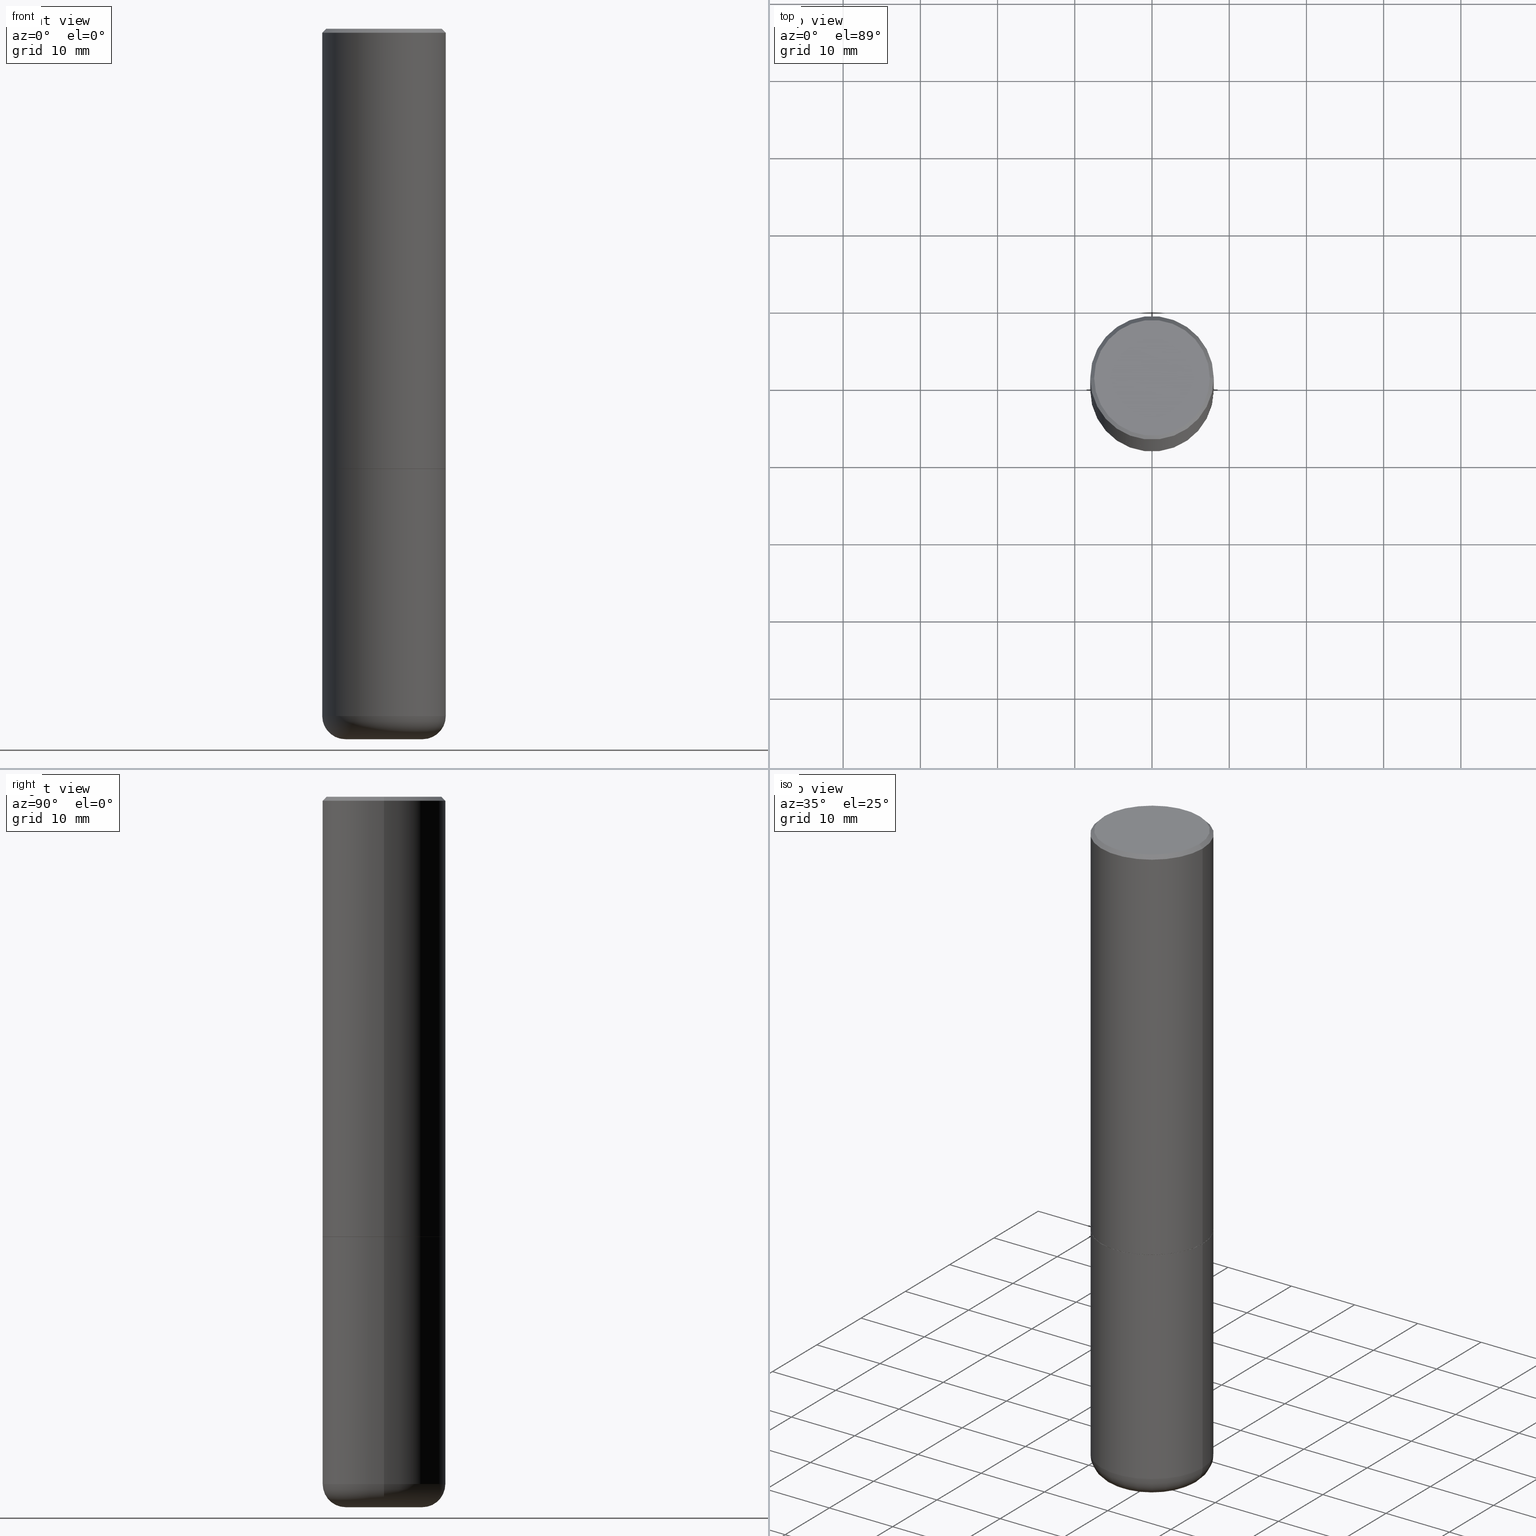
[diagram: canonical four-view strip — front | top / right | iso, engineering-drawing reading convention]
A machine part, canonical four-view strip (front | top / right | iso — engineering-drawing reading convention). The complete STEP part file that produces these views, byte-faithful:
ISO-10303-21;
HEADER;
FILE_DESCRIPTION (( 'STEP AP203' ),
    '1' );
FILE_NAME ('47051.STEP',
    '2024-03-05T15:22:00',
    ( '' ),
    ( '' ),
    'SwSTEP 2.0',
    'SolidWorks 2023',
    '' );
FILE_SCHEMA (( 'CONFIG_CONTROL_DESIGN' ));
ENDSEC;

DATA;
#1 = ADVANCED_BREP_SHAPE_REPRESENTATION ( '47051', ( #372, #90, #180 ), #160 ) ;
#2 = ORIENTED_EDGE ( 'NONE', *, *, #311, .F. ) ;
#3 = AXIS2_PLACEMENT_3D ( 'NONE', #31, #412, #193 ) ;
#4 = DIRECTION ( 'NONE',  ( 2.445468806185136597E-29, -3.491481338843145583E-15, -1.000000000000000000 ) ) ;
#5 = CARTESIAN_POINT ( 'NONE',  ( 0.3139500000000000068, -1.002718525702362111E-14, -2.243999999999999773 ) ) ;
#6 = DIRECTION ( 'NONE',  ( 1.000000000000000000, -6.982962677686264344E-15, 0.000000000000000000 ) ) ;
#7 = PERSON_AND_ORGANIZATION_ROLE ( 'creator' ) ;
#8 = CC_DESIGN_APPROVAL ( #118, ( #408 ) ) ;
#9 = FACE_OUTER_BOUND ( 'NONE', #255, .T. ) ;
#10 = PERSON_AND_ORGANIZATION ( #211, #69 ) ;
#11 = ORIENTED_EDGE ( 'NONE', *, *, #152, .F. ) ;
#12 = EDGE_CURVE ( 'NONE', #378, #353, #68, .T. ) ;
#13 = CLOSED_SHELL ( 'NONE', ( #136, #284, #367, #264, #317, #170, #238, #65 ) ) ;
#14 = CIRCLE ( 'NONE', #184, 0.3139500000000000068 ) ;
#15 = LINE ( 'NONE', #157, #392 ) ;
#16 = ORIENTED_EDGE ( 'NONE', *, *, #403, .F. ) ;
#17 = PERSON_AND_ORGANIZATION ( #211, #69 ) ;
#18 = EDGE_CURVE ( 'NONE', #93, #227, #362, .T. ) ;
#19 = CARTESIAN_POINT ( 'NONE',  ( 8.857488016002563354E-29, -1.264614540928987041E-14, -3.621999999999999442 ) ) ;
#20 = EDGE_LOOP ( 'NONE', ( #72, #285, #340, #257 ) ) ;
#21 = ORIENTED_EDGE ( 'NONE', *, *, #387, .T. ) ;
#22 = ADVANCED_FACE ( 'NONE', ( #214 ), #352, .T. ) ;
#23 = APPROVAL_DATE_TIME ( #348, #131 ) ;
#24 = AXIS2_PLACEMENT_3D ( 'NONE', #134, #202, #144 ) ;
#25 = CALENDAR_DATE ( 2024, 5, 3 ) ;
#26 = DESIGN_CONTEXT ( 'detailed design', #313, 'design' ) ;
#27 = DIRECTION ( 'NONE',  ( -2.445468806185136597E-29, 3.491481338843145583E-15, 1.000000000000000000 ) ) ;
#28 = CARTESIAN_POINT ( 'NONE',  ( 4.890937612370289799E-31, -6.982962677686315028E-17, -0.02000000000000006981 ) ) ;
#29 = ORIENTED_EDGE ( 'NONE', *, *, #106, .T. ) ;
#30 = DIRECTION ( 'NONE',  ( 2.438088387897960049E-29, -3.491481338843145188E-15, -1.000000000000000000 ) ) ;
#31 = CARTESIAN_POINT ( 'NONE',  ( 0.1968500000000000250, -1.360839766627503947E-14, -3.503899999999999793 ) ) ;
#32 = VERTEX_POINT ( 'NONE', #377 ) ;
#33 = CARTESIAN_POINT ( 'NONE',  ( 0.000000000000000000, 0.000000000000000000, 0.000000000000000000 ) ) ;
#34 = CARTESIAN_POINT ( 'NONE',  ( 0.3149500000000000077, -2.230543471175007450E-15, -0.02000000000000006981 ) ) ;
#35 = DIRECTION ( 'NONE',  ( 1.000000000000000000, -6.982962677686263555E-15, 0.000000000000000000 ) ) ;
#36 = AXIS2_PLACEMENT_3D ( 'NONE', #19, #60, #121 ) ;
#37 = DIRECTION ( 'NONE',  ( -0.7071067811866199593, 7.493145998870616062E-15, 0.7071067811864750752 ) ) ;
#38 = DIRECTION ( 'NONE',  ( -2.445468806185136597E-29, 3.491481338843145583E-15, 1.000000000000000000 ) ) ;
#39 = CARTESIAN_POINT ( 'NONE',  ( -0.3139500000000000068, -5.604135205445183851E-15, -2.243999999999999773 ) ) ;
#40 = DIRECTION ( 'NONE',  ( -2.445468806185136597E-29, 3.491481338843145583E-15, 1.000000000000000000 ) ) ;
#41 = VERTEX_POINT ( 'NONE', #410 ) ;
#42 = LOCAL_TIME ( 10, 22, 0.000000000000000000, #49 ) ;
#43 = CC_DESIGN_SECURITY_CLASSIFICATION ( #415, ( #59 ) ) ;
#44 = DIRECTION ( 'NONE',  ( -2.445468806185136877E-29, 3.491481338843145188E-15, 1.000000000000000000 ) ) ;
#45 = DIRECTION ( 'NONE',  ( -2.445468806185136597E-29, 3.491481338843145583E-15, 1.000000000000000000 ) ) ;
#46 = EDGE_LOOP ( 'NONE', ( #251, #192, #100, #382 ) ) ;
#47 = EDGE_CURVE ( 'NONE', #32, #414, #231, .T. ) ;
#48 = CARTESIAN_POINT ( 'NONE',  ( -0.1968500000000000250, -1.062169457542108764E-14, -3.621999999999999442 ) ) ;
#49 = COORDINATED_UNIVERSAL_TIME_OFFSET ( 5, 0, .BEHIND. ) ;
#50 = FACE_OUTER_BOUND ( 'NONE', #46, .T. ) ;
#51 = DIRECTION ( 'NONE',  ( -0.7071067811865466846, 2.468850131082247989E-15, -0.7071067811865483499 ) ) ;
#52 = SECURITY_CLASSIFICATION_LEVEL ( 'unclassified' ) ;
#53 = CALENDAR_DATE ( 2024, 5, 3 ) ;
#54 = CARTESIAN_POINT ( 'NONE',  ( 4.890937612370289799E-31, -6.982962677686315028E-17, -0.02000000000000006981 ) ) ;
#55 = VERTEX_POINT ( 'NONE', #218 ) ;
#56 = DIRECTION ( 'NONE',  ( -2.445468806185136597E-29, 3.491481338843145583E-15, 1.000000000000000000 ) ) ;
#57 = CC_DESIGN_PERSON_AND_ORGANIZATION_ASSIGNMENT ( #114, #146, ( #415 ) ) ;
#58 = AXIS2_PLACEMENT_3D ( 'NONE', #310, #40, #123 ) ;
#59 = PRODUCT_DEFINITION_FORMATION_WITH_SPECIFIED_SOURCE ( 'ANY', '', #365, .NOT_KNOWN. ) ;
#60 = DIRECTION ( 'NONE',  ( -2.445468806185136597E-29, 3.491481338843145583E-15, 1.000000000000000000 ) ) ;
#61 = APPROVAL_PERSON_ORGANIZATION ( #332, #103, #305 ) ;
#62 = CARTESIAN_POINT ( 'NONE',  ( 5.485186532273261485E-29, -7.831392643025175821E-15, -2.242999999999999883 ) ) ;
#63 = EDGE_LOOP ( 'NONE', ( #79, #102, #96, #400 ) ) ;
#64 = PLANE ( 'NONE',  #282 ) ;
#65 = ADVANCED_FACE ( 'NONE', ( #132 ), #314, .F. ) ;
#66 = DIRECTION ( 'NONE',  ( -2.445468806185136877E-29, 3.491481338843145188E-15, 1.000000000000000000 ) ) ;
#67 = DIRECTION ( 'NONE',  ( -2.445468806185136597E-29, 3.491481338843145583E-15, 1.000000000000000000 ) ) ;
#68 = CIRCLE ( 'NONE', #141, 0.3149500000000000077 ) ;
#69 = ORGANIZATION ( 'UNSPECIFIED', 'UNSPECIFIED', '' ) ;
#70 = EDGE_LOOP ( 'NONE', ( #164, #281, #165, #91 ) ) ;
#71 = DIRECTION ( 'NONE',  ( -2.445468806185136597E-29, 3.491481338843145583E-15, 1.000000000000000000 ) ) ;
#72 = ORIENTED_EDGE ( 'NONE', *, *, #207, .F. ) ;
#73 = APPLICATION_PROTOCOL_DEFINITION ( 'international standard', 'config_control_design', 1994, #182 ) ;
#74 = DIRECTION ( 'NONE',  ( 1.000000000000000000, -6.982962677686266711E-15, 0.000000000000000000 ) ) ;
#75 = AXIS2_PLACEMENT_3D ( 'NONE', #62, #27, #384 ) ;
#76 = CONICAL_SURFACE ( 'NONE', #393, 0.3149500000000000077, 0.7853981633974471688 ) ;
#77 = CARTESIAN_POINT ( 'NONE',  ( 0.000000000000000000, 0.000000000000000000, 0.000000000000000000 ) ) ;
#78 = PERSON_AND_ORGANIZATION_ROLE ( 'design_supplier' ) ;
#79 = ORIENTED_EDGE ( 'NONE', *, *, #172, .F. ) ;
#80 = DIRECTION ( 'NONE',  ( -2.445468806185136597E-29, 3.491481338843145583E-15, 1.000000000000000000 ) ) ;
#81 = DATE_AND_TIME ( #85, #42 ) ;
#82 = DIRECTION ( 'NONE',  ( -2.445468806185136597E-29, 3.491481338843145583E-15, 1.000000000000000000 ) ) ;
#83 = EDGE_CURVE ( 'NONE', #353, #378, #369, .T. ) ;
#84 = CC_DESIGN_DATE_AND_TIME_ASSIGNMENT ( #265, #268, ( #415 ) ) ;
#85 = CALENDAR_DATE ( 2024, 5, 3 ) ;
#86 = CIRCLE ( 'NONE', #159, 0.3149500000000000077 ) ;
#87 = VECTOR ( 'NONE', #44, 39.37007874015748143 ) ;
#88 = CC_DESIGN_PERSON_AND_ORGANIZATION_ASSIGNMENT ( #262, #78, ( #59 ) ) ;
#89 = ORIENTED_EDGE ( 'NONE', *, *, #113, .F. ) ;
#90 = MANIFOLD_SOLID_BREP ( 'Body-Move/Copy2[2]', #13 ) ;
#91 = ORIENTED_EDGE ( 'NONE', *, *, #47, .F. ) ;
#92 = CARTESIAN_POINT ( 'NONE',  ( 5.487632001079445967E-29, -7.834884124364017250E-15, -2.243999999999999773 ) ) ;
#93 = VERTEX_POINT ( 'NONE', #380 ) ;
#94 = FACE_OUTER_BOUND ( 'NONE', #418, .T. ) ;
#95 = LOCAL_TIME ( 10, 22, 0.000000000000000000, #335 ) ;
#96 = ORIENTED_EDGE ( 'NONE', *, *, #213, .T. ) ;
#97 = DIRECTION ( 'NONE',  ( -2.445468806185136877E-29, 3.491481338843145188E-15, 1.000000000000000000 ) ) ;
#98 = CARTESIAN_POINT ( 'NONE',  ( 0.000000000000000000, 0.000000000000000000, 0.000000000000000000 ) ) ;
#99 = CARTESIAN_POINT ( 'NONE',  ( -0.3139500000000000068, -5.598836751096959871E-15, -2.243999999999999773 ) ) ;
#100 = ORIENTED_EDGE ( 'NONE', *, *, #47, .T. ) ;
#101 = AXIS2_PLACEMENT_3D ( 'NONE', #77, #411, #327 ) ;
#102 = ORIENTED_EDGE ( 'NONE', *, *, #243, .F. ) ;
#103 = APPROVAL ( #296, 'UNSPECIFIED' ) ;
#104 = CARTESIAN_POINT ( 'NONE',  ( -0.3149500000000000077, -7.796488447491823147E-15, -2.243999999999999773 ) ) ;
#105 =( CONVERSION_BASED_UNIT ( 'INCH', #299 ) LENGTH_UNIT ( ) NAMED_UNIT ( #221 ) );
#106 = EDGE_CURVE ( 'NONE', #414, #55, #242, .T. ) ;
#107 = VECTOR ( 'NONE', #66, 39.37007874015748143 ) ;
#108 = CC_DESIGN_APPROVAL ( #103, ( #59 ) ) ;
#109 = COORDINATED_UNIVERSAL_TIME_OFFSET ( 5, 0, .BEHIND. ) ;
#110 = UNCERTAINTY_MEASURE_WITH_UNIT (LENGTH_MEASURE( 1.000000000000000082E-05 ), #105, 'distance_accuracy_value', 'NONE');
#111 = DIRECTION ( 'NONE',  ( -2.445468806185136597E-29, 3.491481338843145583E-15, 1.000000000000000000 ) ) ;
#112 = CALENDAR_DATE ( 2024, 5, 3 ) ;
#113 = EDGE_CURVE ( 'NONE', #374, #93, #249, .T. ) ;
#114 = PERSON_AND_ORGANIZATION ( #211, #69 ) ;
#115 = CIRCLE ( 'NONE', #147, 0.1180999999999997191 ) ;
#116 = CARTESIAN_POINT ( 'NONE',  ( 5.487632001079445967E-29, -7.834884124364017250E-15, -2.243999999999999773 ) ) ;
#117 = DIRECTION ( 'NONE',  ( 1.000000000000000000, -6.982962677686266711E-15, 0.000000000000000000 ) ) ;
#118 = APPROVAL ( #337, 'UNSPECIFIED' ) ;
#119 = EDGE_LOOP ( 'NONE', ( #224, #371, #167, #416 ) ) ;
#120 = TOROIDAL_SURFACE ( 'NONE', #351, 0.1968500000000000250, 0.1180999999999997468 ) ;
#121 = DIRECTION ( 'NONE',  ( 1.000000000000000000, -6.982962677686267499E-15, 0.000000000000000000 ) ) ;
#122 = COORDINATED_UNIVERSAL_TIME_OFFSET ( 5, 0, .BEHIND. ) ;
#123 = DIRECTION ( 'NONE',  ( 1.000000000000000000, -6.982962677686266711E-15, 0.000000000000000000 ) ) ;
#124 = CYLINDRICAL_SURFACE ( 'NONE', #316, 0.3149500000000001743 ) ;
#125 = EDGE_CURVE ( 'NONE', #55, #353, #220, .T. ) ;
#126 = ORIENTED_EDGE ( 'NONE', *, *, #376, .T. ) ;
#127 = DIRECTION ( 'NONE',  ( -2.445468806185136597E-29, 3.491481338843145583E-15, 1.000000000000000000 ) ) ;
#128 = EDGE_CURVE ( 'NONE', #55, #414, #86, .T. ) ;
#129 = EDGE_LOOP ( 'NONE', ( #247, #21, #241, #407 ) ) ;
#130 = DIRECTION ( 'NONE',  ( -1.000000000000000000, 6.982962677686266711E-15, 0.000000000000000000 ) ) ;
#131 = APPROVAL ( #361, 'UNSPECIFIED' ) ;
#132 = FACE_OUTER_BOUND ( 'NONE', #185, .T. ) ;
#133 = CIRCLE ( 'NONE', #216, 0.3149500000000002853 ) ;
#134 = CARTESIAN_POINT ( 'NONE',  ( 8.857488016002563354E-29, -1.264614540928987041E-14, -3.621999999999999442 ) ) ;
#135 = DIRECTION ( 'NONE',  ( 1.000000000000000000, -6.982962677686269866E-15, 4.883557194083114022E-29 ) ) ;
#136 = ADVANCED_FACE ( 'NONE', ( #350 ), #307, .T. ) ;
#137 = CYLINDRICAL_SURFACE ( 'NONE', #101, 0.3149500000000000077 ) ;
#138 = DIRECTION ( 'NONE',  ( -2.445468806185136597E-29, 3.491481338843145583E-15, 1.000000000000000000 ) ) ;
#139 = CARTESIAN_POINT ( 'NONE',  ( 0.3149499999999998967, -1.443308555850978615E-14, -3.503899999999999793 ) ) ;
#140 = FACE_OUTER_BOUND ( 'NONE', #63, .T. ) ;
#141 = AXIS2_PLACEMENT_3D ( 'NONE', #189, #280, #187 ) ;
#142 = AXIS2_PLACEMENT_3D ( 'NONE', #208, #56, #354 ) ;
#143 = COORDINATED_UNIVERSAL_TIME_OFFSET ( 5, 0, .BEHIND. ) ;
#144 = DIRECTION ( 'NONE',  ( 1.000000000000000000, -6.982962677686267499E-15, 0.000000000000000000 ) ) ;
#145 = PLANE ( 'NONE',  #225 ) ;
#146 = PERSON_AND_ORGANIZATION_ROLE ( 'classification_officer' ) ;
#147 = AXIS2_PLACEMENT_3D ( 'NONE', #272, #203, #205 ) ;
#148 = ORIENTED_EDGE ( 'NONE', *, *, #152, .T. ) ;
#149 = FACE_OUTER_BOUND ( 'NONE', #319, .T. ) ;
#150 = AXIS2_PLACEMENT_3D ( 'NONE', #318, #38, #297 ) ;
#151 = AXIS2_PLACEMENT_3D ( 'NONE', #248, #375, #379 ) ;
#152 = EDGE_CURVE ( 'NONE', #374, #347, #309, .T. ) ;
#153 = ORIENTED_EDGE ( 'NONE', *, *, #128, .T. ) ;
#154 = DIRECTION ( 'NONE',  ( 2.445468806185136597E-29, -3.491481338843145583E-15, -1.000000000000000000 ) ) ;
#155 = PRODUCT_RELATED_PRODUCT_CATEGORY ( 'detail', '', ( #365 ) ) ;
#156 = DIRECTION ( 'NONE',  ( -1.000000000000000000, 6.982962677686265922E-15, -4.876176775795935793E-29 ) ) ;
#157 = CARTESIAN_POINT ( 'NONE',  ( 0.3149500000000000077, -2.230543471175007450E-15, -0.02000000000000006981 ) ) ;
#158 = DIRECTION ( 'NONE',  ( 0.7071067811866199593, -2.468850131083015945E-15, 0.7071067811864750752 ) ) ;
#159 = AXIS2_PLACEMENT_3D ( 'NONE', #161, #127, #260 ) ;
#160 =( GEOMETRIC_REPRESENTATION_CONTEXT ( 3 ) GLOBAL_UNCERTAINTY_ASSIGNED_CONTEXT ( ( #110 ) ) GLOBAL_UNIT_ASSIGNED_CONTEXT ( ( #105, #388, #359 ) ) REPRESENTATION_CONTEXT ( 'NONE', 'WORKASPACE' ) );
#161 = CARTESIAN_POINT ( 'NONE',  ( 8.568678149992099474E-29, -1.223380146317249786E-14, -3.503899999999999793 ) ) ;
#162 = EDGE_LOOP ( 'NONE', ( #209, #274, #338, #204 ) ) ;
#163 = CC_DESIGN_DATE_AND_TIME_ASSIGNMENT ( #181, #395, ( #408 ) ) ;
#164 = ORIENTED_EDGE ( 'NONE', *, *, #403, .T. ) ;
#165 = ORIENTED_EDGE ( 'NONE', *, *, #106, .F. ) ;
#166 = CARTESIAN_POINT ( 'NONE',  ( 8.568678149992099474E-29, -1.223380146317249786E-14, -3.503899999999999793 ) ) ;
#167 = ORIENTED_EDGE ( 'NONE', *, *, #344, .T. ) ;
#168 = AXIS2_PLACEMENT_3D ( 'NONE', #98, #71, #277 ) ;
#169 = AXIS2_PLACEMENT_3D ( 'NONE', #28, #154, #250 ) ;
#170 = ADVANCED_FACE ( 'NONE', ( #212 ), #396, .T. ) ;
#171 = DIRECTION ( 'NONE',  ( 1.000000000000000000, -6.982962677686267499E-15, 0.000000000000000000 ) ) ;
#172 = EDGE_CURVE ( 'NONE', #41, #312, #15, .T. ) ;
#173 = ADVANCED_FACE ( 'NONE', ( #50 ), #120, .T. ) ;
#174 = CARTESIAN_POINT ( 'NONE',  ( -0.3149500000000002853, -1.712756788624580222E-15, -2.242999999999999883 ) ) ;
#175 = ADVANCED_FACE ( 'NONE', ( #240 ), #330, .T. ) ;
#176 = DIRECTION ( 'NONE',  ( 1.000000000000000000, -6.982962677686264344E-15, 0.000000000000000000 ) ) ;
#177 = LINE ( 'NONE', #261, #183 ) ;
#178 = DATE_AND_TIME ( #53, #95 ) ;
#179 = DIRECTION ( 'NONE',  ( -2.445468806185136597E-29, 3.491481338843145583E-15, 1.000000000000000000 ) ) ;
#180 = AXIS2_PLACEMENT_3D ( 'NONE', #33, #306, #325 ) ;
#181 = DATE_AND_TIME ( #112, #271 ) ;
#182 = APPLICATION_CONTEXT ( 'configuration controlled 3d designs of mechanical parts and assemblies' ) ;
#183 = VECTOR ( 'NONE', #390, 39.37007874015748143 ) ;
#184 = AXIS2_PLACEMENT_3D ( 'NONE', #295, #82, #6 ) ;
#185 = EDGE_LOOP ( 'NONE', ( #290, #230 ) ) ;
#186 = CARTESIAN_POINT ( 'NONE',  ( 1.587752295914809676E-28, -2.593055815129891410E-15, -3.621999999999999886 ) ) ;
#187 = DIRECTION ( 'NONE',  ( 1.000000000000000000, -6.982962677686266711E-15, 0.000000000000000000 ) ) ;
#188 = ORIENTED_EDGE ( 'NONE', *, *, #355, .T. ) ;
#189 = CARTESIAN_POINT ( 'NONE',  ( 5.487632001079445967E-29, -7.834884124364017250E-15, -2.243999999999999773 ) ) ;
#190 = DIRECTION ( 'NONE',  ( 0.7071067811865466846, -7.319954787623252890E-15, -0.7071067811865483499 ) ) ;
#191 = DIRECTION ( 'NONE',  ( 1.000000000000000000, -6.982962677686264344E-15, 0.000000000000000000 ) ) ;
#192 = ORIENTED_EDGE ( 'NONE', *, *, #311, .T. ) ;
#193 = DIRECTION ( 'NONE',  ( 1.000000000000000000, -6.982962677686273021E-15, 0.000000000000000000 ) ) ;
#194 = ORIENTED_EDGE ( 'NONE', *, *, #18, .F. ) ;
#195 =( LENGTH_UNIT ( ) NAMED_UNIT ( * ) SI_UNIT ( $, .METRE. ) );
#196 = CLOSED_SHELL ( 'NONE', ( #22, #175, #229, #258, #173, #320 ) ) ;
#197 = VECTOR ( 'NONE', #37, 39.37007874015748143 ) ;
#198 = CARTESIAN_POINT ( 'NONE',  ( -0.2949499999999998234, 2.094539655171995318E-15, 1.792775245842027353E-16 ) ) ;
#199 = EDGE_CURVE ( 'NONE', #227, #93, #133, .T. ) ;
#200 = AXIS2_PLACEMENT_3D ( 'NONE', #275, #409, #74 ) ;
#201 = APPROVAL_DATE_TIME ( #81, #118 ) ;
#202 = DIRECTION ( 'NONE',  ( -2.445468806185136597E-29, 3.491481338843145583E-15, 1.000000000000000000 ) ) ;
#203 = DIRECTION ( 'NONE',  ( 7.105427357601001859E-15, 1.000000000000000000, -3.491481338843145583E-15 ) ) ;
#204 = ORIENTED_EDGE ( 'NONE', *, *, #344, .F. ) ;
#205 = DIRECTION ( 'NONE',  ( -1.000000000000000000, 7.105427357601005014E-15, 0.000000000000000000 ) ) ;
#206 = ORIENTED_EDGE ( 'NONE', *, *, #355, .F. ) ;
#207 = EDGE_CURVE ( 'NONE', #41, #259, #404, .T. ) ;
#208 = CARTESIAN_POINT ( 'NONE',  ( -4.384175940207923203E-45, 6.259441315597878405E-31, 1.792775245842172799E-16 ) ) ;
#209 = ORIENTED_EDGE ( 'NONE', *, *, #18, .T. ) ;
#210 = CIRCLE ( 'NONE', #200, 0.3149500000000000077 ) ;
#211 = PERSON ( 'UNSPECIFIED', 'UNSPECIFIED', 'UNSPECIFIED', ('UNSPECIFIED'), ('UNSPECIFIED'), ('UNSPECIFIED') ) ;
#212 = FACE_OUTER_BOUND ( 'NONE', #129, .T. ) ;
#213 = EDGE_CURVE ( 'NONE', #259, #300, #391, .T. ) ;
#214 = FACE_OUTER_BOUND ( 'NONE', #235, .T. ) ;
#215 = DIRECTION ( 'NONE',  ( -2.438088387897960049E-29, 3.491481338843145188E-15, 1.000000000000000000 ) ) ;
#216 = AXIS2_PLACEMENT_3D ( 'NONE', #326, #45, #171 ) ;
#217 = LOCAL_TIME ( 10, 22, 0.000000000000000000, #122 ) ;
#218 = CARTESIAN_POINT ( 'NONE',  ( -0.3149499999999998967, -9.995947116896063452E-15, -3.503899999999999793 ) ) ;
#219 = ORIENTED_EDGE ( 'NONE', *, *, #125, .T. ) ;
#220 = LINE ( 'NONE', #287, #107 ) ;
#221 = DIMENSIONAL_EXPONENTS ( 1.000000000000000000, 0.000000000000000000, 0.000000000000000000, 0.000000000000000000, 0.000000000000000000, 0.000000000000000000, 0.000000000000000000 ) ;
#222 = CC_DESIGN_PERSON_AND_ORGANIZATION_ASSIGNMENT ( #17, #7, ( #59 ) ) ;
#223 = LINE ( 'NONE', #39, #197 ) ;
#224 = ORIENTED_EDGE ( 'NONE', *, *, #406, .F. ) ;
#225 = AXIS2_PLACEMENT_3D ( 'NONE', #398, #308, #339 ) ;
#226 = EDGE_LOOP ( 'NONE', ( #148, #126, #194, #89 ) ) ;
#227 = VERTEX_POINT ( 'NONE', #174 ) ;
#228 = CARTESIAN_POINT ( 'NONE',  ( 0.3149500000000000077, -2.199284095337289871E-15, 1.535751875536930130E-29 ) ) ;
#229 = ADVANCED_FACE ( 'NONE', ( #9 ), #145, .F. ) ;
#230 = ORIENTED_EDGE ( 'NONE', *, *, #207, .T. ) ;
#231 = CIRCLE ( 'NONE', #3, 0.1180999999999997191 ) ;
#232 = CARTESIAN_POINT ( 'NONE',  ( -0.3149500000000000077, 2.129454468560426573E-15, -0.02000000000000006981 ) ) ;
#233 = CALENDAR_DATE ( 2024, 5, 3 ) ;
#234 = PERSON_AND_ORGANIZATION ( #211, #69 ) ;
#235 = EDGE_LOOP ( 'NONE', ( #29, #219, #349, #206 ) ) ;
#236 = DIRECTION ( 'NONE',  ( 1.000000000000000000, -6.982962677686269866E-15, 4.883557194083114022E-29 ) ) ;
#237 = PERSON_AND_ORGANIZATION_ROLE ( 'creator' ) ;
#238 = ADVANCED_FACE ( 'NONE', ( #149 ), #373, .F. ) ;
#239 = DIRECTION ( 'NONE',  ( 1.000000000000000000, -6.982962677686265922E-15, 4.876176775795935793E-29 ) ) ;
#240 = FACE_OUTER_BOUND ( 'NONE', #70, .T. ) ;
#241 = ORIENTED_EDGE ( 'NONE', *, *, #113, .T. ) ;
#242 = CIRCLE ( 'NONE', #303, 0.3149500000000000077 ) ;
#243 = EDGE_CURVE ( 'NONE', #259, #41, #304, .T. ) ;
#244 = CIRCLE ( 'NONE', #36, 0.1968500000000000250 ) ;
#245 = CARTESIAN_POINT ( 'NONE',  ( 5.487632001079445967E-29, -7.834884124364017250E-15, -2.243999999999999773 ) ) ;
#246 = ORIENTED_EDGE ( 'NONE', *, *, #387, .F. ) ;
#247 = ORIENTED_EDGE ( 'NONE', *, *, #376, .F. ) ;
#248 = CARTESIAN_POINT ( 'NONE',  ( 0.000000000000000000, 0.000000000000000000, 0.000000000000000000 ) ) ;
#249 = LINE ( 'NONE', #289, #273 ) ;
#250 = DIRECTION ( 'NONE',  ( -1.000000000000000000, 6.982962677686266711E-15, 0.000000000000000000 ) ) ;
#251 = ORIENTED_EDGE ( 'NONE', *, *, #298, .F. ) ;
#252 = CIRCLE ( 'NONE', #24, 0.1968500000000000250 ) ;
#253 = CARTESIAN_POINT ( 'NONE',  ( 0.3149500000000001743, -2.199284095337290660E-15, 1.535751875536930690E-29 ) ) ;
#254 = CARTESIAN_POINT ( 'NONE',  ( 2.059624841783562880E-15, 0.2949499999999998234, -9.401736585996764239E-16 ) ) ;
#255 = EDGE_LOOP ( 'NONE', ( #267, #405 ) ) ;
#256 = DIRECTION ( 'NONE',  ( -2.445468806185136597E-29, 3.491481338843145583E-15, 1.000000000000000000 ) ) ;
#257 = ORIENTED_EDGE ( 'NONE', *, *, #213, .F. ) ;
#258 = ADVANCED_FACE ( 'NONE', ( #288 ), #137, .T. ) ;
#259 = VERTEX_POINT ( 'NONE', #198 ) ;
#260 = DIRECTION ( 'NONE',  ( 1.000000000000000000, -6.982962677686263555E-15, 0.000000000000000000 ) ) ;
#261 = CARTESIAN_POINT ( 'NONE',  ( -0.3149500000000001743, 2.237854346276436774E-15, -1.549218606675783237E-29 ) ) ;
#262 = PERSON_AND_ORGANIZATION ( #211, #69 ) ;
#263 = VECTOR ( 'NONE', #51, 39.37007874015748143 ) ;
#264 = ADVANCED_FACE ( 'NONE', ( #140 ), #413, .T. ) ;
#265 = DATE_AND_TIME ( #233, #283 ) ;
#266 = DIRECTION ( 'NONE',  ( -2.445468806185136597E-29, 3.491481338843145583E-15, 1.000000000000000000 ) ) ;
#267 = ORIENTED_EDGE ( 'NONE', *, *, #12, .T. ) ;
#268 = DATE_TIME_ROLE ( 'classification_date' ) ;
#269 = APPROVAL_ROLE ( '' ) ;
#270 = AXIS2_PLACEMENT_3D ( 'NONE', #245, #138, #176 ) ;
#271 = LOCAL_TIME ( 10, 22, 0.000000000000000000, #109 ) ;
#272 = CARTESIAN_POINT ( 'NONE',  ( -0.1968500000000000250, -1.083509808782873928E-14, -3.503899999999999793 ) ) ;
#273 = VECTOR ( 'NONE', #158, 39.37007874015748143 ) ;
#274 = ORIENTED_EDGE ( 'NONE', *, *, #406, .T. ) ;
#275 = CARTESIAN_POINT ( 'NONE',  ( 4.890937612370289799E-31, -6.982962677686315028E-17, -0.02000000000000006981 ) ) ;
#276 = CYLINDRICAL_SURFACE ( 'NONE', #151, 0.3149500000000001743 ) ;
#277 = DIRECTION ( 'NONE',  ( 1.000000000000000000, -6.982962677686266711E-15, 4.876176775795936353E-29 ) ) ;
#278 = FACE_OUTER_BOUND ( 'NONE', #162, .T. ) ;
#279 = LINE ( 'NONE', #253, #385 ) ;
#280 = DIRECTION ( 'NONE',  ( -2.445468806185136597E-29, 3.491481338843145583E-15, 1.000000000000000000 ) ) ;
#281 = ORIENTED_EDGE ( 'NONE', *, *, #298, .T. ) ;
#282 = AXIS2_PLACEMENT_3D ( 'NONE', #186, #30, #156 ) ;
#283 = LOCAL_TIME ( 10, 22, 0.000000000000000000, #143 ) ;
#284 = ADVANCED_FACE ( 'NONE', ( #278 ), #124, .T. ) ;
#285 = ORIENTED_EDGE ( 'NONE', *, *, #172, .T. ) ;
#286 = CARTESIAN_POINT ( 'NONE',  ( 0.3149500000000000077, -1.003416821970130712E-14, -2.243999999999999773 ) ) ;
#287 = CARTESIAN_POINT ( 'NONE',  ( -0.3149500000000000077, 2.237854346276435590E-15, -1.549218606675782676E-29 ) ) ;
#288 = FACE_OUTER_BOUND ( 'NONE', #341, .T. ) ;
#289 = CARTESIAN_POINT ( 'NONE',  ( 0.3139500000000000068, -1.002718525702362111E-14, -2.243999999999999773 ) ) ;
#290 = ORIENTED_EDGE ( 'NONE', *, *, #243, .T. ) ;
#291 = AXIS2_PLACEMENT_3D ( 'NONE', #394, #111, #293 ) ;
#292 = CARTESIAN_POINT ( 'NONE',  ( 4.890937612370289799E-31, -6.982962677686315028E-17, -0.02000000000000006981 ) ) ;
#293 = DIRECTION ( 'NONE',  ( 1.000000000000000000, -6.982962677686267499E-15, 4.874125435057324435E-29 ) ) ;
#294 = CC_DESIGN_PERSON_AND_ORGANIZATION_ASSIGNMENT ( #358, #364, ( #365 ) ) ;
#295 = CARTESIAN_POINT ( 'NONE',  ( 5.487632001079445967E-29, -7.834884124364017250E-15, -2.243999999999999773 ) ) ;
#296 = APPROVAL_STATUS ( 'not_yet_approved' ) ;
#297 = DIRECTION ( 'NONE',  ( 1.000000000000000000, -6.982962677686264344E-15, 0.000000000000000000 ) ) ;
#298 = EDGE_CURVE ( 'NONE', #383, #55, #115, .T. ) ;
#299 = LENGTH_MEASURE_WITH_UNIT ( LENGTH_MEASURE( 0.02539999999999999897 ), #195 );
#300 = VERTEX_POINT ( 'NONE', #336 ) ;
#301 = EDGE_CURVE ( 'NONE', #300, #312, #323, .T. ) ;
#302 = APPROVAL_DATE_TIME ( #178, #103 ) ;
#303 = AXIS2_PLACEMENT_3D ( 'NONE', #166, #256, #35 ) ;
#304 = CIRCLE ( 'NONE', #142, 0.2949499999999998234 ) ;
#305 = APPROVAL_ROLE ( '' ) ;
#306 = DIRECTION ( 'NONE',  ( 0.000000000000000000, 0.000000000000000000, 1.000000000000000000 ) ) ;
#307 = CONICAL_SURFACE ( 'NONE', #315, 0.3139500000000000068, 0.7853981633975507526 ) ;
#308 = DIRECTION ( 'NONE',  ( 2.438088387897960049E-29, -3.491481338843145188E-15, -1.000000000000000000 ) ) ;
#309 = CIRCLE ( 'NONE', #150, 0.3139500000000000068 ) ;
#310 = CARTESIAN_POINT ( 'NONE',  ( 5.487632001079445967E-29, -7.834884124364017250E-15, -2.243999999999999773 ) ) ;
#311 = EDGE_CURVE ( 'NONE', #383, #32, #244, .T. ) ;
#312 = VERTEX_POINT ( 'NONE', #34 ) ;
#313 = APPLICATION_CONTEXT ( 'configuration controlled 3d designs of mechanical parts and assemblies' ) ;
#314 = PLANE ( 'NONE',  #402 ) ;
#315 = AXIS2_PLACEMENT_3D ( 'NONE', #92, #67, #191 ) ;
#316 = AXIS2_PLACEMENT_3D ( 'NONE', #366, #266, #329 ) ;
#317 = ADVANCED_FACE ( 'NONE', ( #343 ), #276, .T. ) ;
#318 = CARTESIAN_POINT ( 'NONE',  ( 5.487632001079445967E-29, -7.834884124364017250E-15, -2.243999999999999773 ) ) ;
#319 = EDGE_LOOP ( 'NONE', ( #11, #246 ) ) ;
#320 = ADVANCED_FACE ( 'NONE', ( #94 ), #64, .T. ) ;
#321 = DIRECTION ( 'NONE',  ( -1.000000000000000000, 6.982962677686265922E-15, -4.876176775795935793E-29 ) ) ;
#322 = ORIENTED_EDGE ( 'NONE', *, *, #125, .F. ) ;
#323 = CIRCLE ( 'NONE', #370, 0.3149500000000000077 ) ;
#324 = MECHANICAL_CONTEXT ( 'NONE', #182, 'mechanical' ) ;
#325 = DIRECTION ( 'NONE',  ( 1.000000000000000000, 0.000000000000000000, 0.000000000000000000 ) ) ;
#326 = CARTESIAN_POINT ( 'NONE',  ( 5.485186532273261485E-29, -7.831392643025175821E-15, -2.242999999999999883 ) ) ;
#327 = DIRECTION ( 'NONE',  ( 1.000000000000000000, -6.982962677686266711E-15, 4.876176775795936353E-29 ) ) ;
#328 = PERSON_AND_ORGANIZATION ( #211, #69 ) ;
#329 = DIRECTION ( 'NONE',  ( 1.000000000000000000, -6.982962677686265922E-15, 4.876176775795935232E-29 ) ) ;
#330 = TOROIDAL_SURFACE ( 'NONE', #356, 0.1968500000000000250, 0.1180999999999997468 ) ;
#331 = APPROVAL_PERSON_ORGANIZATION ( #234, #131, #342 ) ;
#332 = PERSON_AND_ORGANIZATION ( #211, #69 ) ;
#333 = ORIENTED_EDGE ( 'NONE', *, *, #83, .F. ) ;
#334 = CARTESIAN_POINT ( 'NONE',  ( 8.568678149992099474E-29, -1.223380146317249786E-14, -3.503899999999999793 ) ) ;
#335 = COORDINATED_UNIVERSAL_TIME_OFFSET ( 5, 0, .BEHIND. ) ;
#336 = CARTESIAN_POINT ( 'NONE',  ( -0.3149500000000000077, 2.129454468560426573E-15, -0.02000000000000006981 ) ) ;
#337 = APPROVAL_STATUS ( 'not_yet_approved' ) ;
#338 = ORIENTED_EDGE ( 'NONE', *, *, #381, .F. ) ;
#339 = DIRECTION ( 'NONE',  ( -1.000000000000000000, 6.982962677686265922E-15, -4.876176775795935793E-29 ) ) ;
#340 = ORIENTED_EDGE ( 'NONE', *, *, #381, .T. ) ;
#341 = EDGE_LOOP ( 'NONE', ( #322, #153, #188, #333 ) ) ;
#342 = APPROVAL_ROLE ( '' ) ;
#343 = FACE_OUTER_BOUND ( 'NONE', #119, .T. ) ;
#344 = EDGE_CURVE ( 'NONE', #93, #312, #279, .T. ) ;
#345 = DIRECTION ( 'NONE',  ( 2.438088387897960049E-29, -3.491481338843145188E-15, -1.000000000000000000 ) ) ;
#346 = AXIS2_PLACEMENT_3D ( 'NONE', #116, #215, #239 ) ;
#347 = VERTEX_POINT ( 'NONE', #99 ) ;
#348 = DATE_AND_TIME ( #25, #217 ) ;
#349 = ORIENTED_EDGE ( 'NONE', *, *, #12, .F. ) ;
#350 = FACE_OUTER_BOUND ( 'NONE', #226, .T. ) ;
#351 = AXIS2_PLACEMENT_3D ( 'NONE', #386, #360, #236 ) ;
#352 = CYLINDRICAL_SURFACE ( 'NONE', #168, 0.3149500000000000077 ) ;
#353 = VERTEX_POINT ( 'NONE', #104 ) ;
#354 = DIRECTION ( 'NONE',  ( 1.000000000000000000, -6.982962677686267499E-15, 4.874125435057324435E-29 ) ) ;
#355 = EDGE_CURVE ( 'NONE', #414, #378, #417, .T. ) ;
#356 = AXIS2_PLACEMENT_3D ( 'NONE', #334, #80, #135 ) ;
#357 = CC_DESIGN_PERSON_AND_ORGANIZATION_ASSIGNMENT ( #10, #237, ( #408 ) ) ;
#358 = PERSON_AND_ORGANIZATION ( #211, #69 ) ;
#359 =( NAMED_UNIT ( * ) SI_UNIT ( $, .STERADIAN. ) SOLID_ANGLE_UNIT ( ) );
#360 = DIRECTION ( 'NONE',  ( -2.445468806185136597E-29, 3.491481338843145583E-15, 1.000000000000000000 ) ) ;
#361 = APPROVAL_STATUS ( 'not_yet_approved' ) ;
#362 = CIRCLE ( 'NONE', #75, 0.3149500000000002853 ) ;
#363 = APPROVAL_PERSON_ORGANIZATION ( #328, #118, #269 ) ;
#364 = PERSON_AND_ORGANIZATION_ROLE ( 'design_owner' ) ;
#365 = PRODUCT ( '47051', '47051', '', ( #324 ) ) ;
#366 = CARTESIAN_POINT ( 'NONE',  ( 0.000000000000000000, 0.000000000000000000, 0.000000000000000000 ) ) ;
#367 = ADVANCED_FACE ( 'NONE', ( #389 ), #76, .T. ) ;
#368 = SHAPE_DEFINITION_REPRESENTATION ( #401, #1 ) ;
#369 = CIRCLE ( 'NONE', #58, 0.3149500000000000077 ) ;
#370 = AXIS2_PLACEMENT_3D ( 'NONE', #54, #179, #117 ) ;
#371 = ORIENTED_EDGE ( 'NONE', *, *, #199, .T. ) ;
#372 = MANIFOLD_SOLID_BREP ( 'Body-Move/Copy2[1]', #196 ) ;
#373 = PLANE ( 'NONE',  #346 ) ;
#374 = VERTEX_POINT ( 'NONE', #5 ) ;
#375 = DIRECTION ( 'NONE',  ( -2.445468806185136597E-29, 3.491481338843145583E-15, 1.000000000000000000 ) ) ;
#376 = EDGE_CURVE ( 'NONE', #347, #227, #223, .T. ) ;
#377 = CARTESIAN_POINT ( 'NONE',  ( 0.1968500000000000250, -1.402074161239241202E-14, -3.621999999999999442 ) ) ;
#378 = VERTEX_POINT ( 'NONE', #286 ) ;
#379 = DIRECTION ( 'NONE',  ( 1.000000000000000000, -6.982962677686265922E-15, 4.876176775795935232E-29 ) ) ;
#380 = CARTESIAN_POINT ( 'NONE',  ( 0.3149500000000002853, -1.003067673836246727E-14, -2.242999999999999883 ) ) ;
#381 = EDGE_CURVE ( 'NONE', #312, #300, #210, .T. ) ;
#382 = ORIENTED_EDGE ( 'NONE', *, *, #128, .F. ) ;
#383 = VERTEX_POINT ( 'NONE', #48 ) ;
#384 = DIRECTION ( 'NONE',  ( 1.000000000000000000, -6.982962677686267499E-15, 0.000000000000000000 ) ) ;
#385 = VECTOR ( 'NONE', #97, 39.37007874015748143 ) ;
#386 = CARTESIAN_POINT ( 'NONE',  ( 8.568678149992099474E-29, -1.223380146317249786E-14, -3.503899999999999793 ) ) ;
#387 = EDGE_CURVE ( 'NONE', #347, #374, #14, .T. ) ;
#388 =( NAMED_UNIT ( * ) PLANE_ANGLE_UNIT ( ) SI_UNIT ( $, .RADIAN. ) );
#389 = FACE_OUTER_BOUND ( 'NONE', #20, .T. ) ;
#390 = DIRECTION ( 'NONE',  ( -2.445468806185136877E-29, 3.491481338843145188E-15, 1.000000000000000000 ) ) ;
#391 = LINE ( 'NONE', #232, #263 ) ;
#392 = VECTOR ( 'NONE', #190, 39.37007874015748143 ) ;
#393 = AXIS2_PLACEMENT_3D ( 'NONE', #292, #4, #130 ) ;
#394 = CARTESIAN_POINT ( 'NONE',  ( -4.384175940207923203E-45, 6.259441315597878405E-31, 1.792775245842172799E-16 ) ) ;
#395 = DATE_TIME_ROLE ( 'creation_date' ) ;
#396 = CONICAL_SURFACE ( 'NONE', #270, 0.3139500000000000068, 0.7853981633975507526 ) ;
#397 = CC_DESIGN_APPROVAL ( #131, ( #415 ) ) ;
#398 = CARTESIAN_POINT ( 'NONE',  ( 5.487632001079445967E-29, -7.834884124364017250E-15, -2.243999999999999773 ) ) ;
#399 = APPLICATION_PROTOCOL_DEFINITION ( 'international standard', 'config_control_design', 1994, #313 ) ;
#400 = ORIENTED_EDGE ( 'NONE', *, *, #301, .T. ) ;
#401 = PRODUCT_DEFINITION_SHAPE ( 'NONE', 'NONE',  #408 ) ;
#402 = AXIS2_PLACEMENT_3D ( 'NONE', #254, #345, #321 ) ;
#403 = EDGE_CURVE ( 'NONE', #32, #383, #252, .T. ) ;
#404 = CIRCLE ( 'NONE', #291, 0.2949499999999998234 ) ;
#405 = ORIENTED_EDGE ( 'NONE', *, *, #83, .T. ) ;
#406 = EDGE_CURVE ( 'NONE', #227, #300, #177, .T. ) ;
#407 = ORIENTED_EDGE ( 'NONE', *, *, #199, .F. ) ;
#408 = PRODUCT_DEFINITION ( 'UNKNOWN', '', #59, #26 ) ;
#409 = DIRECTION ( 'NONE',  ( -2.445468806185136597E-29, 3.491481338843145583E-15, 1.000000000000000000 ) ) ;
#410 = CARTESIAN_POINT ( 'NONE',  ( 0.2949499999999998234, -2.127023677808859286E-15, 1.792775245842319231E-16 ) ) ;
#411 = DIRECTION ( 'NONE',  ( -2.445468806185136597E-29, 3.491481338843145583E-15, 1.000000000000000000 ) ) ;
#412 = DIRECTION ( 'NONE',  ( -6.982962677686266711E-15, -1.000000000000000000, 3.491481338843145583E-15 ) ) ;
#413 = CONICAL_SURFACE ( 'NONE', #169, 0.3149500000000000077, 0.7853981633974471688 ) ;
#414 = VERTEX_POINT ( 'NONE', #139 ) ;
#415 = SECURITY_CLASSIFICATION ( '', '', #52 ) ;
#416 = ORIENTED_EDGE ( 'NONE', *, *, #301, .F. ) ;
#417 = LINE ( 'NONE', #228, #87 ) ;
#418 = EDGE_LOOP ( 'NONE', ( #16, #2 ) ) ;
ENDSEC;
END-ISO-10303-21;
